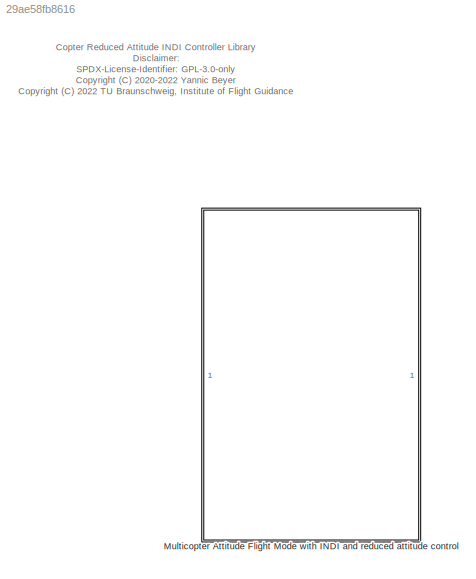
MODEL slx_29ae58fb8616
KIND library
CONFIG AbsTol = auto
CONFIG EnableMultiTasking = off
CONFIG FixedStep = auto
CONFIG MaxStep = auto
CONFIG MinStep = auto
CONFIG RelTol = 1e-3
CONFIG SampleTimeConstraint = Unconstrained
CONFIG SolverName = VariableStepAuto
CONFIG StartTime = 0.0
CONFIG StopTime = 10.0
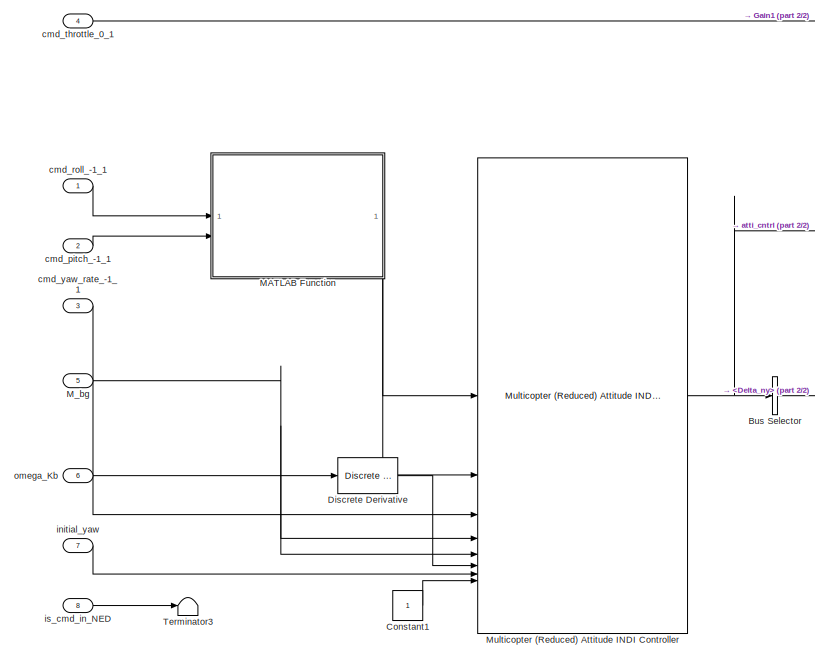
[diagram: Multicopter Attitude Flight Mode with INDI and reduced attitude control - part 1/2, left side, full height]
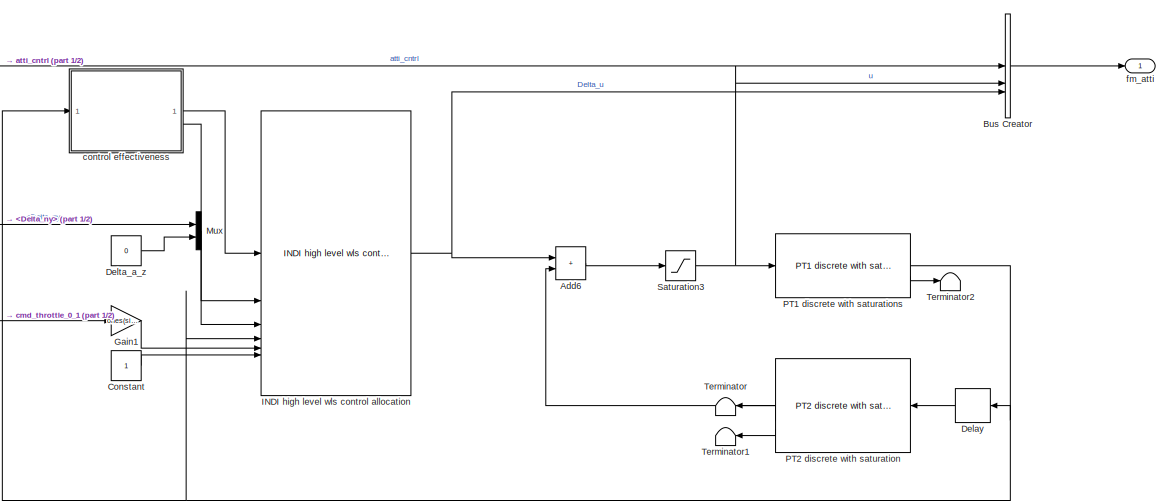
[diagram: Multicopter Attitude Flight Mode with INDI and reduced attitude control - part 2/2, middle right region]
BLOCK [SubSystem] Multicopter Attitude Flight Mode with INDI and reduced attitude control
BLOCK [Sum] Multicopter Attitude Flight Mode with INDI and reduced attitude control/Add6
  IconShape = rectangular
BLOCK [BusCreator] Multicopter Attitude Flight Mode with INDI and reduced attitude control/Bus Creator
  DisplayOption = bar
  InheritFromInputs = on
  Inputs = 3
BLOCK [BusSelector] Multicopter Attitude Flight Mode with INDI and reduced attitude control/Bus Selector
  OutputSignals = pseudo_control.Delta_ny
BLOCK [Constant] Multicopter Attitude Flight Mode with INDI and reduced attitude control/Constant
  OutDataTypeStr = Inherit: Inherit via back propagation
BLOCK [Constant] Multicopter Attitude Flight Mode with INDI and reduced attitude control/Constant1
  OutDataTypeStr = Inherit: Inherit via back propagation
BLOCK [Delay] Multicopter Attitude Flight Mode with INDI and reduced attitude control/Delay
  DelayLength = 1
  InputPortMap = u0
BLOCK [Constant] Multicopter Attitude Flight Mode with INDI and reduced attitude control/Delta_a_z
  Value = 0
BLOCK [Reference] Multicopter Attitude Flight Mode with INDI and reduced attitude control/Discrete Derivative  REF=simulink/Discrete/Discrete Derivative
  SourceBlock = simulink/Discrete/Discrete Derivative
  SourceType = Discrete Derivative
BLOCK [Gain] Multicopter Attitude Flight Mode with INDI and reduced attitude control/Gain1
  Gain = ones(size(fm.ca.u_d))
BLOCK [Reference] Multicopter Attitude Flight Mode with INDI and reduced attitude control/INDI high level wls control allocation  REF=ca_lib/INDI high level wls control allocation  (lib defined in slx_0f34462aa2fc)
for copters
  SourceBlock = ca_lib/INDI high level wls control allocation\nfor copters
  SourceProductName = LADAC
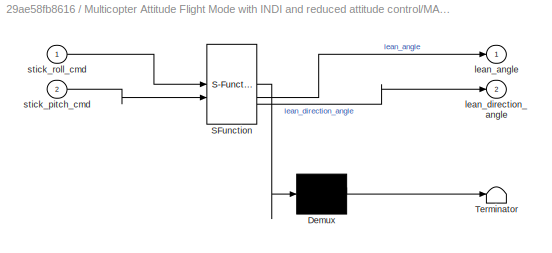
BLOCK [SubSystem] Multicopter Attitude Flight Mode with INDI and reduced attitude control/MATLAB Function
  ErrorFcn = Stateflow.Translate.translate
  PermitHierarchicalResolution = ExplicitOnly
  SFBlockType = MATLAB Function
  TreatAsAtomicUnit = on
BLOCK [Demux] Multicopter Attitude Flight Mode with INDI and reduced attitude control/MATLAB Function/ Demux 
  Outputs = 1
BLOCK [S-Function] Multicopter Attitude Flight Mode with INDI and reduced attitude control/MATLAB Function/ SFunction 
  EnableBusSupport = off
  FunctionName = sf_sfun
  PortCounts = [2 3]
  SFcnIsStateOwnerBlock = off
  SFunctionDeploymentMode = off
  Tag = Stateflow S-Function 1
BLOCK [Terminator] Multicopter Attitude Flight Mode with INDI and reduced attitude control/MATLAB Function/ Terminator 
BLOCK [Outport] Multicopter Attitude Flight Mode with INDI and reduced attitude control/MATLAB Function/lean_angle
  VectorParamsAs1DForOutWhenUnconnected = off
BLOCK [Outport] Multicopter Attitude Flight Mode with INDI and reduced attitude control/MATLAB Function/lean_direction_angle
  Port = 2
  VectorParamsAs1DForOutWhenUnconnected = off
BLOCK [Inport] Multicopter Attitude Flight Mode with INDI and reduced attitude control/MATLAB Function/stick_pitch_cmd
  Port = 2
BLOCK [Inport] Multicopter Attitude Flight Mode with INDI and reduced attitude control/MATLAB Function/stick_roll_cmd
BLOCK [Inport] Multicopter Attitude Flight Mode with INDI and reduced attitude control/M_bg
  Port = 5
  SampleTime = fm.sample_time
BLOCK [Reference] Multicopter Attitude Flight Mode with INDI and reduced attitude control/Multicopter (Reduced) Attitude INDI Controller  REF=cntrlAttiRedIndi_lib/Multicopter (Reduced) Attitude INDI Controller
  SourceBlock = cntrlAttiRedIndi_lib/Multicopter (Reduced) Attitude INDI Controller
  SourceProductName = LADAC
BLOCK [Mux] Multicopter Attitude Flight Mode with INDI and reduced attitude control/Mux
  DisplayOption = bar
  Inputs = 2
BLOCK [Reference] Multicopter Attitude Flight Mode with INDI and reduced attitude control/PT1 discrete with saturations  REF=filters_lib/PT1 discrete with saturations  (lib defined in slx_a584fcc4ebc5)
  SourceBlock = filters_lib/PT1 discrete with saturations
  SourceProductName = LADAC
  SourceType = PT1 discrete with saturation
BLOCK [Reference] Multicopter Attitude Flight Mode with INDI and reduced attitude control/PT2 discrete with saturation  REF=filters_lib/PT2 discrete with saturation  (lib defined in slx_a584fcc4ebc5)
  NameLocation = top
  SourceBlock = filters_lib/PT2 discrete with saturation
  SourceProductName = LADAC
  SourceType = PT2 discrete with saturation
BLOCK [Saturate] Multicopter Attitude Flight Mode with INDI and reduced attitude control/Saturation3
  LowerLimit = fm.ca.u_min
  UpperLimit = fm.ca.u_max
BLOCK [Terminator] Multicopter Attitude Flight Mode with INDI and reduced attitude control/Terminator
  NameLocation = top
BLOCK [Terminator] Multicopter Attitude Flight Mode with INDI and reduced attitude control/Terminator1
  NameLocation = top
BLOCK [Terminator] Multicopter Attitude Flight Mode with INDI and reduced attitude control/Terminator2
BLOCK [Terminator] Multicopter Attitude Flight Mode with INDI and reduced attitude control/Terminator3
BLOCK [Inport] Multicopter Attitude Flight Mode with INDI and reduced attitude control/cmd_pitch_-1_1
  Port = 2
  SampleTime = fm.sample_time
BLOCK [Inport] Multicopter Attitude Flight Mode with INDI and reduced attitude control/cmd_roll_-1_1
  SampleTime = fm.sample_time
BLOCK [Inport] Multicopter Attitude Flight Mode with INDI and reduced attitude control/cmd_throttle_0_1
  Port = 4
  SampleTime = fm.sample_time
BLOCK [Inport] Multicopter Attitude Flight Mode with INDI and reduced attitude control/cmd_yaw_rate_-1_1
  Port = 3
  SampleTime = fm.sample_time
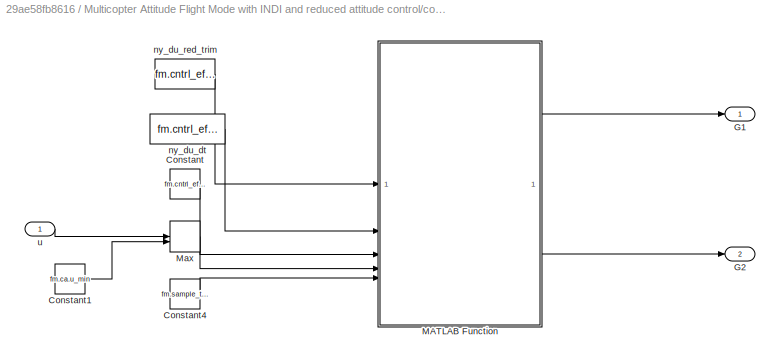
BLOCK [SubSystem] Multicopter Attitude Flight Mode with INDI and reduced attitude control/control effectiveness
BLOCK [Constant] Multicopter Attitude Flight Mode with INDI and reduced attitude control/control effectiveness/Constant
  Value = fm.cntrl_effect.u_trim
BLOCK [Constant] Multicopter Attitude Flight Mode with INDI and reduced attitude control/control effectiveness/Constant1
  Value = fm.ca.u_min
BLOCK [Constant] Multicopter Attitude Flight Mode with INDI and reduced attitude control/control effectiveness/Constant4
  Value = fm.sample_time
BLOCK [Outport] Multicopter Attitude Flight Mode with INDI and reduced attitude control/control effectiveness/G1
  VectorParamsAs1DForOutWhenUnconnected = off
BLOCK [Outport] Multicopter Attitude Flight Mode with INDI and reduced attitude control/control effectiveness/G2
  Port = 2
  VectorParamsAs1DForOutWhenUnconnected = off
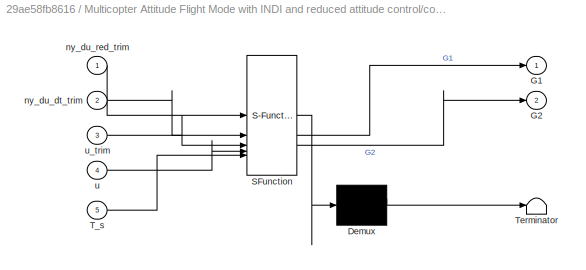
BLOCK [SubSystem] Multicopter Attitude Flight Mode with INDI and reduced attitude control/control effectiveness/MATLAB Function
  ErrorFcn = Stateflow.Translate.translate
  PermitHierarchicalResolution = ExplicitOnly
  SFBlockType = MATLAB Function
  TreatAsAtomicUnit = on
BLOCK [Demux] Multicopter Attitude Flight Mode with INDI and reduced attitude control/control effectiveness/MATLAB Function/ Demux 
  Outputs = 1
BLOCK [S-Function] Multicopter Attitude Flight Mode with INDI and reduced attitude control/control effectiveness/MATLAB Function/ SFunction 
  EnableBusSupport = off
  FunctionName = sf_sfun
  PortCounts = [5 3]
  SFcnIsStateOwnerBlock = off
  SFunctionDeploymentMode = off
  Tag = Stateflow S-Function 3
BLOCK [Terminator] Multicopter Attitude Flight Mode with INDI and reduced attitude control/control effectiveness/MATLAB Function/ Terminator 
BLOCK [Outport] Multicopter Attitude Flight Mode with INDI and reduced attitude control/control effectiveness/MATLAB Function/G1
  VectorParamsAs1DForOutWhenUnconnected = off
BLOCK [Outport] Multicopter Attitude Flight Mode with INDI and reduced attitude control/control effectiveness/MATLAB Function/G2
  Port = 2
  VectorParamsAs1DForOutWhenUnconnected = off
BLOCK [Inport] Multicopter Attitude Flight Mode with INDI and reduced attitude control/control effectiveness/MATLAB Function/T_s
  Port = 5
BLOCK [Inport] Multicopter Attitude Flight Mode with INDI and reduced attitude control/control effectiveness/MATLAB Function/ny_du_dt_trim
  Port = 2
BLOCK [Inport] Multicopter Attitude Flight Mode with INDI and reduced attitude control/control effectiveness/MATLAB Function/ny_du_red_trim
BLOCK [Inport] Multicopter Attitude Flight Mode with INDI and reduced attitude control/control effectiveness/MATLAB Function/u
  Port = 4
BLOCK [Inport] Multicopter Attitude Flight Mode with INDI and reduced attitude control/control effectiveness/MATLAB Function/u_trim
  Port = 3
BLOCK [MinMax] Multicopter Attitude Flight Mode with INDI and reduced attitude control/control effectiveness/Max
  Function = max
  Inputs = 2
BLOCK [Constant] Multicopter Attitude Flight Mode with INDI and reduced attitude control/control effectiveness/ny_du_dt
  Value = fm.cntrl_effect.ny_du_dt
BLOCK [Constant] Multicopter Attitude Flight Mode with INDI and reduced attitude control/control effectiveness/ny_du_red_trim
  Value = fm.cntrl_effect.ny_du_red
BLOCK [Inport] Multicopter Attitude Flight Mode with INDI and reduced attitude control/control effectiveness/u
BLOCK [Outport] Multicopter Attitude Flight Mode with INDI and reduced attitude control/fm_atti
  SampleTime = fm.sample_time
  SamplingMode = Sample based
  SignalType = real
  VectorParamsAs1DForOutWhenUnconnected = off
BLOCK [Inport] Multicopter Attitude Flight Mode with INDI and reduced attitude control/initial_yaw
  Port = 7
  SampleTime = fm.sample_time
BLOCK [Inport] Multicopter Attitude Flight Mode with INDI and reduced attitude control/is_cmd_in_NED
  Port = 8
  SampleTime = fm.sample_time
BLOCK [Inport] Multicopter Attitude Flight Mode with INDI and reduced attitude control/omega_Kb
  Port = 6
  SampleTime = fm.sample_time
ANNOTATION (root): Copter Reduced Attitude INDI Controller Library Disclaimer: SPDX-License-Identifier: GPL-3.0-only <copyright redacted>
LINE Multicopter Attitude Flight Mode with INDI and reduced attitude control/Add6:1 -> Multicopter Attitude Flight Mode with INDI and reduced attitude control/Saturation3:1
LINE Multicopter Attitude Flight Mode with INDI and reduced attitude control/Bus Creator:1 -> Multicopter Attitude Flight Mode with INDI and reduced attitude control/fm_atti:1
LINE Multicopter Attitude Flight Mode with INDI and reduced attitude control/Bus Selector:1 -> Multicopter Attitude Flight Mode with INDI and reduced attitude control/Mux:1
LINE Multicopter Attitude Flight Mode with INDI and reduced attitude control/Constant1:1 -> Multicopter Attitude Flight Mode with INDI and reduced attitude control/Multicopter (Reduced) Attitude INDI Controller:8
LINE Multicopter Attitude Flight Mode with INDI and reduced attitude control/Constant:1 -> Multicopter Attitude Flight Mode with INDI and reduced attitude control/INDI high level wls control allocation:6
LINE Multicopter Attitude Flight Mode with INDI and reduced attitude control/Delay:1 -> Multicopter Attitude Flight Mode with INDI and reduced attitude control/PT2 discrete with saturation:1
LINE Multicopter Attitude Flight Mode with INDI and reduced attitude control/Delta_a_z:1 -> Multicopter Attitude Flight Mode with INDI and reduced attitude control/Mux:2
LINE Multicopter Attitude Flight Mode with INDI and reduced attitude control/Discrete Derivative:1 -> Multicopter Attitude Flight Mode with INDI and reduced attitude control/Multicopter (Reduced) Attitude INDI Controller:6
LINE Multicopter Attitude Flight Mode with INDI and reduced attitude control/Gain1:1 -> Multicopter Attitude Flight Mode with INDI and reduced attitude control/INDI high level wls control allocation:5
NET Multicopter Attitude Flight Mode with INDI and reduced attitude control/INDI high level wls control allocation:1 -> Multicopter Attitude Flight Mode with INDI and reduced attitude control/Add6:1, Multicopter Attitude Flight Mode with INDI and reduced attitude control/Bus Creator:3
LINE Multicopter Attitude Flight Mode with INDI and reduced attitude control/MATLAB Function:1 -> Multicopter Attitude Flight Mode with INDI and reduced attitude control/Multicopter (Reduced) Attitude INDI Controller:1
LINE Multicopter Attitude Flight Mode with INDI and reduced attitude control/MATLAB Function:2 -> Multicopter Attitude Flight Mode with INDI and reduced attitude control/Multicopter (Reduced) Attitude INDI Controller:2
LINE Multicopter Attitude Flight Mode with INDI and reduced attitude control/M_bg:1 -> Multicopter Attitude Flight Mode with INDI and reduced attitude control/Multicopter (Reduced) Attitude INDI Controller:4
NET Multicopter Attitude Flight Mode with INDI and reduced attitude control/Multicopter (Reduced) Attitude INDI Controller:1 -> Multicopter Attitude Flight Mode with INDI and reduced attitude control/Bus Creator:1, Multicopter Attitude Flight Mode with INDI and reduced attitude control/Bus Selector:1
LINE Multicopter Attitude Flight Mode with INDI and reduced attitude control/Mux:1 -> Multicopter Attitude Flight Mode with INDI and reduced attitude control/INDI high level wls control allocation:3
NET Multicopter Attitude Flight Mode with INDI and reduced attitude control/PT1 discrete with saturations:1 -> Multicopter Attitude Flight Mode with INDI and reduced attitude control/Delay:1, Multicopter Attitude Flight Mode with INDI and reduced attitude control/INDI high level wls control allocation:4, Multicopter Attitude Flight Mode with INDI and reduced attitude control/control effectiveness:1
LINE Multicopter Attitude Flight Mode with INDI and reduced attitude control/PT1 discrete with saturations:2 -> Multicopter Attitude Flight Mode with INDI and reduced attitude control/Terminator2:1
LINE Multicopter Attitude Flight Mode with INDI and reduced attitude control/PT2 discrete with saturation:1 -> Multicopter Attitude Flight Mode with INDI and reduced attitude control/Add6:2
LINE Multicopter Attitude Flight Mode with INDI and reduced attitude control/PT2 discrete with saturation:2 -> Multicopter Attitude Flight Mode with INDI and reduced attitude control/Terminator:1
LINE Multicopter Attitude Flight Mode with INDI and reduced attitude control/PT2 discrete with saturation:3 -> Multicopter Attitude Flight Mode with INDI and reduced attitude control/Terminator1:1
NET Multicopter Attitude Flight Mode with INDI and reduced attitude control/Saturation3:1 -> Multicopter Attitude Flight Mode with INDI and reduced attitude control/Bus Creator:2, Multicopter Attitude Flight Mode with INDI and reduced attitude control/PT1 discrete with saturations:1
LINE Multicopter Attitude Flight Mode with INDI and reduced attitude control/cmd_pitch_-1_1:1 -> Multicopter Attitude Flight Mode with INDI and reduced attitude control/MATLAB Function:2
LINE Multicopter Attitude Flight Mode with INDI and reduced attitude control/cmd_roll_-1_1:1 -> Multicopter Attitude Flight Mode with INDI and reduced attitude control/MATLAB Function:1
LINE Multicopter Attitude Flight Mode with INDI and reduced attitude control/cmd_throttle_0_1:1 -> Multicopter Attitude Flight Mode with INDI and reduced attitude control/Gain1:1
LINE Multicopter Attitude Flight Mode with INDI and reduced attitude control/cmd_yaw_rate_-1_1:1 -> Multicopter Attitude Flight Mode with INDI and reduced attitude control/Multicopter (Reduced) Attitude INDI Controller:3
LINE Multicopter Attitude Flight Mode with INDI and reduced attitude control/control effectiveness/Constant1:1 -> Multicopter Attitude Flight Mode with INDI and reduced attitude control/control effectiveness/Max:2
LINE Multicopter Attitude Flight Mode with INDI and reduced attitude control/control effectiveness/Constant4:1 -> Multicopter Attitude Flight Mode with INDI and reduced attitude control/control effectiveness/MATLAB Function:5
LINE Multicopter Attitude Flight Mode with INDI and reduced attitude control/control effectiveness/Constant:1 -> Multicopter Attitude Flight Mode with INDI and reduced attitude control/control effectiveness/MATLAB Function:3
LINE Multicopter Attitude Flight Mode with INDI and reduced attitude control/control effectiveness/MATLAB Function:1 -> Multicopter Attitude Flight Mode with INDI and reduced attitude control/control effectiveness/G1:1
LINE Multicopter Attitude Flight Mode with INDI and reduced attitude control/control effectiveness/MATLAB Function:2 -> Multicopter Attitude Flight Mode with INDI and reduced attitude control/control effectiveness/G2:1
LINE Multicopter Attitude Flight Mode with INDI and reduced attitude control/control effectiveness/Max:1 -> Multicopter Attitude Flight Mode with INDI and reduced attitude control/control effectiveness/MATLAB Function:4
LINE Multicopter Attitude Flight Mode with INDI and reduced attitude control/control effectiveness/ny_du_dt:1 -> Multicopter Attitude Flight Mode with INDI and reduced attitude control/control effectiveness/MATLAB Function:2
LINE Multicopter Attitude Flight Mode with INDI and reduced attitude control/control effectiveness/ny_du_red_trim:1 -> Multicopter Attitude Flight Mode with INDI and reduced attitude control/control effectiveness/MATLAB Function:1
LINE Multicopter Attitude Flight Mode with INDI and reduced attitude control/control effectiveness/u:1 -> Multicopter Attitude Flight Mode with INDI and reduced attitude control/control effectiveness/Max:1
LINE Multicopter Attitude Flight Mode with INDI and reduced attitude control/control effectiveness:1 -> Multicopter Attitude Flight Mode with INDI and reduced attitude control/INDI high level wls control allocation:1
LINE Multicopter Attitude Flight Mode with INDI and reduced attitude control/control effectiveness:2 -> Multicopter Attitude Flight Mode with INDI and reduced attitude control/INDI high level wls control allocation:2
LINE Multicopter Attitude Flight Mode with INDI and reduced attitude control/initial_yaw:1 -> Multicopter Attitude Flight Mode with INDI and reduced attitude control/Multicopter (Reduced) Attitude INDI Controller:7
LINE Multicopter Attitude Flight Mode with INDI and reduced attitude control/is_cmd_in_NED:1 -> Multicopter Attitude Flight Mode with INDI and reduced attitude control/Terminator3:1
NET Multicopter Attitude Flight Mode with INDI and reduced attitude control/omega_Kb:1 -> Multicopter Attitude Flight Mode with INDI and reduced attitude control/Discrete Derivative:1, Multicopter Attitude Flight Mode with INDI and reduced attitude control/Multicopter (Reduced) Attitude INDI Controller:5
note: NET lines group one-source signal fan-out (src -> all destinations, sorted); 1:1 wires keep LINE
CHART Multicopter Attitude Flight Mode
with INDI and reduced attitude control/MATLAB Function states=1 transitions=1
  STATE_LABEL 'eML_blk_kernel()'
  STATE_LABEL 'SCRIPT:\nfunction [lean_angle,lean_direction_angle] = fcn(stick_roll_cmd,stick_pitch_cmd)\n\nlean_angle = sqrt( stick_roll_cmd^2 + stick_pitch_cmd^2 );\nlean_direction_angle = atan2(stick_roll_cmd,-stick_pitch_cmd);\n\nend\n'
CHART Multicopter Attitude Flight Mode
with INDI and reduced attitude control/control effectiveness/MATLAB Function states=1 transitions=1
  STATE_LABEL 'eML_blk_kernel()'
  STATE_LABEL 'SCRIPT:\nfunction [G1,G2] = controlEffectiveness2G1G2( ny_du_red_trim, ny_du_dt_trim, u_trim, u, T_s) %#codegen\n[G1,G2] = controlEffectiveness2G1G2( ny_du_red_trim, ny_du_dt_trim, u_trim, u, T_s);\nend\n'
CHART  states=0 transitions=0
CHART  states=0 transitions=0
